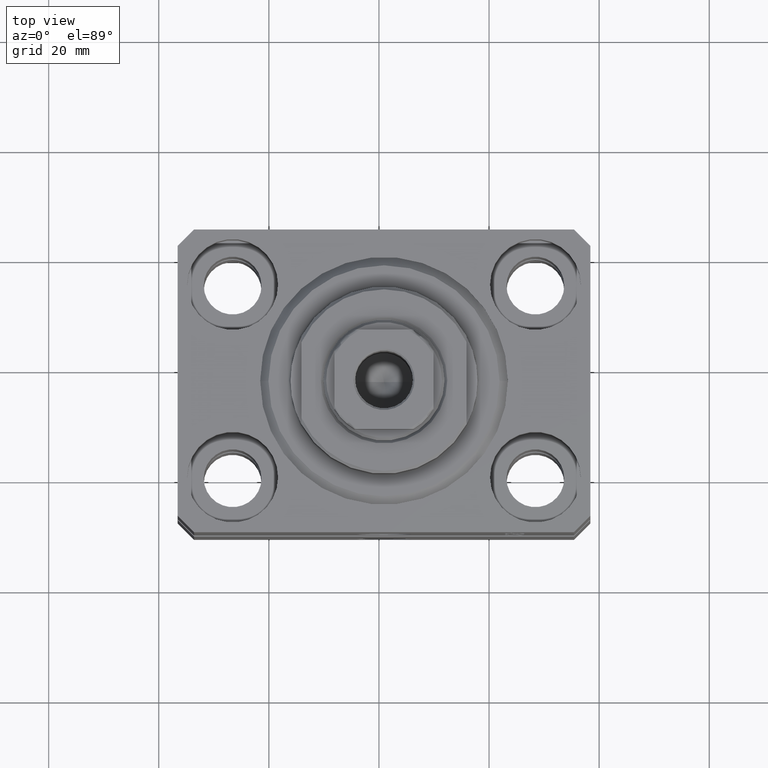
[diagram: clean part render]
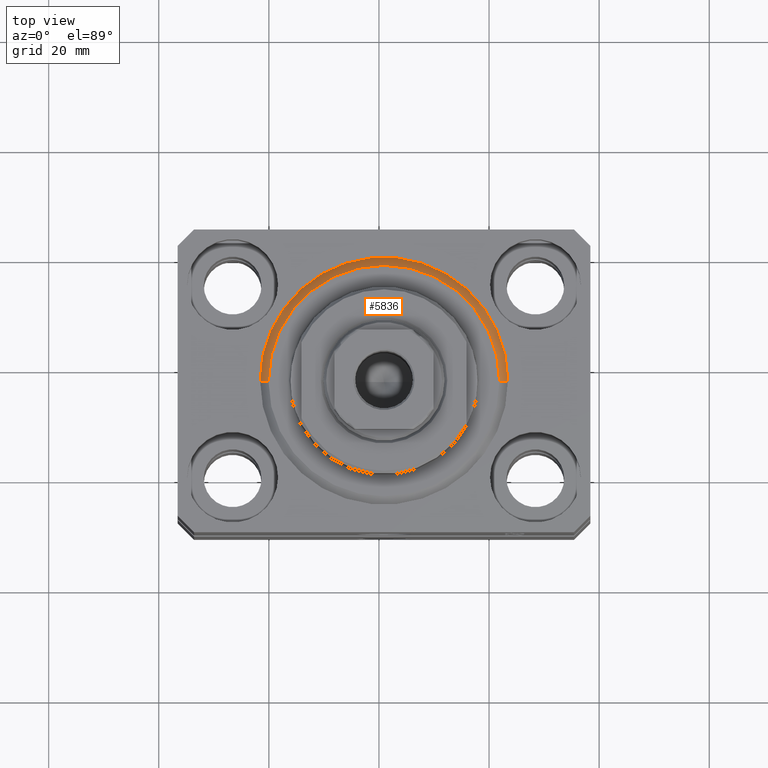
[diagram: same view with one face highlighted and labeled with its STEP entity id]
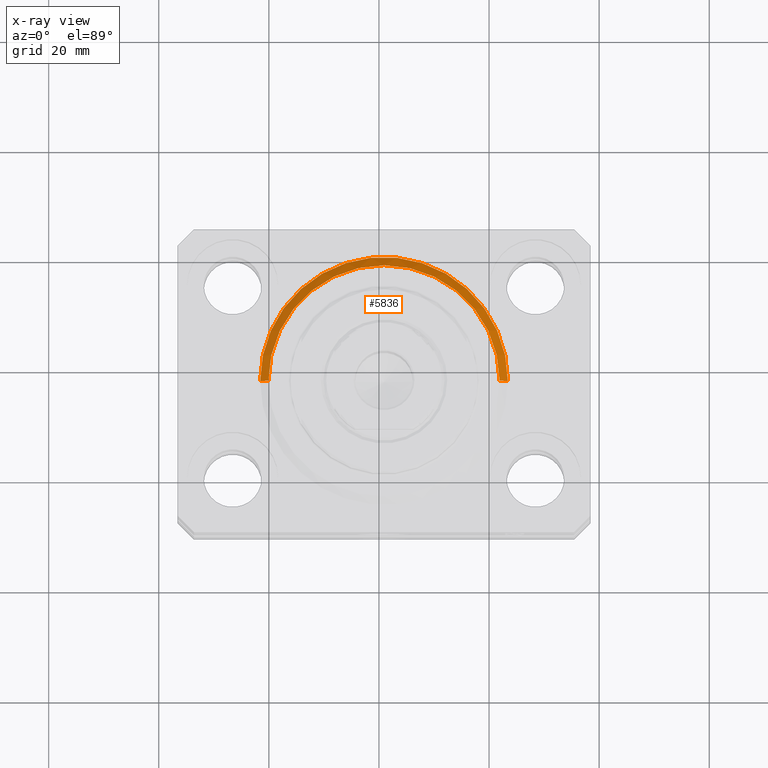
[diagram: x-ray of the same camera — body ghosted, the highlighted face saturated]
A machine part, top view. The second image highlights one B-rep face of the part: STEP entity #5836.
The next image is the same camera in x-ray: the body ghosted, the highlighted face saturated — about 0% of this face is hidden behind the body in this view.
In plain terms, the highlighted conical surface has half-angle 45 deg.
Its self-contained STEP definition (entity closure, byte-faithful):
#105 = LINE ( 'NONE', #37985, #33755 ) ;
#213 = VERTEX_POINT ( 'NONE', #7837 ) ;
#323 = DIRECTION ( 'NONE',  ( -0.7071067811865500152, 8.659560562354962440E-17, 0.7071067811865451302 ) ) ;
#1006 = DIRECTION ( 'NONE',  ( 0.7071067811865500152, 0.000000000000000000, 0.7071067811865451302 ) ) ;
#3981 = CARTESIAN_POINT ( 'NONE',  ( -22.50000000000000355, 0.000000000000000000, 1.500000000000039524 ) ) ;
#5836 = ADVANCED_FACE ( 'NONE', ( #41286 ), #7175, .T. ) ;
#6813 = EDGE_CURVE ( 'NONE', #213, #33165, #23542, .T. ) ;
#7175 = CONICAL_SURFACE ( 'NONE', #9286, 22.50000000000000355, 0.7853981633974517207 ) ;
#7837 = CARTESIAN_POINT ( 'NONE',  ( -20.99999999999995381, 2.663606788145490261E-15, 0.000000000000000000 ) ) ;
#9286 = AXIS2_PLACEMENT_3D ( 'NONE', #24312, #18069, #37706 ) ;
#9885 = VERTEX_POINT ( 'NONE', #3981 ) ;
#10986 = ORIENTED_EDGE ( 'NONE', *, *, #6813, .F. ) ;
#11481 = LINE ( 'NONE', #31541, #35387 ) ;
#12449 = CARTESIAN_POINT ( 'NONE',  ( 0.000000000000000000, 0.000000000000000000, 0.000000000000000000 ) ) ;
#12643 = AXIS2_PLACEMENT_3D ( 'NONE', #26153, #29496, #19247 ) ;
#14200 = CARTESIAN_POINT ( 'NONE',  ( 22.50000000000000355, 2.755455298081544383E-15, 1.500000000000039524 ) ) ;
#15950 = VERTEX_POINT ( 'NONE', #14200 ) ;
#17818 = ORIENTED_EDGE ( 'NONE', *, *, #20290, .T. ) ;
#18069 = DIRECTION ( 'NONE',  ( -0.000000000000000000, -0.000000000000000000, 1.000000000000000000 ) ) ;
#19247 = DIRECTION ( 'NONE',  ( 1.000000000000000000, 0.000000000000000000, 0.000000000000000000 ) ) ;
#20290 = EDGE_CURVE ( 'NONE', #213, #9885, #105, .T. ) ;
#23290 = CIRCLE ( 'NONE', #12643, 22.50000000000000355 ) ;
#23542 = CIRCLE ( 'NONE', #39939, 20.99999999999995381 ) ;
#24312 = CARTESIAN_POINT ( 'NONE',  ( 0.000000000000000000, 0.000000000000000000, 1.500000000000039524 ) ) ;
#24568 = ORIENTED_EDGE ( 'NONE', *, *, #27616, .F. ) ;
#24763 = DIRECTION ( 'NONE',  ( -0.000000000000000000, -0.000000000000000000, -1.000000000000000000 ) ) ;
#26153 = CARTESIAN_POINT ( 'NONE',  ( 0.000000000000000000, 0.000000000000000000, 1.500000000000039524 ) ) ;
#26599 = ORIENTED_EDGE ( 'NONE', *, *, #39718, .F. ) ;
#27616 = EDGE_CURVE ( 'NONE', #33165, #15950, #11481, .T. ) ;
#29496 = DIRECTION ( 'NONE',  ( -0.000000000000000000, -0.000000000000000000, 1.000000000000000000 ) ) ;
#31541 = CARTESIAN_POINT ( 'NONE',  ( 22.50000000000000355, 0.000000000000000000, 1.500000000000039524 ) ) ;
#33165 = VERTEX_POINT ( 'NONE', #38523 ) ;
#33755 = VECTOR ( 'NONE', #323, 1000.000000000000114 ) ;
#35031 = DIRECTION ( 'NONE',  ( 1.000000000000000000, 0.000000000000000000, 0.000000000000000000 ) ) ;
#35387 = VECTOR ( 'NONE', #1006, 1000.000000000000114 ) ;
#37646 = EDGE_LOOP ( 'NONE', ( #10986, #17818, #26599, #24568 ) ) ;
#37706 = DIRECTION ( 'NONE',  ( 1.000000000000000000, 0.000000000000000000, 0.000000000000000000 ) ) ;
#37985 = CARTESIAN_POINT ( 'NONE',  ( -22.50000000000000355, 2.755455298081545172E-15, 1.500000000000039524 ) ) ;
#38523 = CARTESIAN_POINT ( 'NONE',  ( 20.99999999999995381, 0.000000000000000000, 0.000000000000000000 ) ) ;
#39718 = EDGE_CURVE ( 'NONE', #15950, #9885, #23290, .T. ) ;
#39939 = AXIS2_PLACEMENT_3D ( 'NONE', #12449, #24763, #35031 ) ;
#41286 = FACE_OUTER_BOUND ( 'NONE', #37646, .T. ) ;